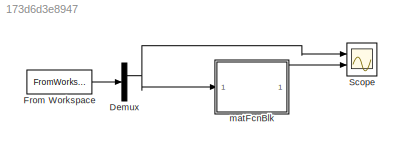
MODEL slx_173d6d3e8947
KIND model
CONFIG AbsTol = auto
CONFIG FixedStep = .001
CONFIG MaxStep = auto
CONFIG MinStep = auto
CONFIG RelTol = 1e-3
CONFIG SampleTimeConstraint = Unconstrained
CONFIG Solver = ode5
CONFIG SolverMode = Auto
CONFIG SolverName = ode5
CONFIG StartTime = 0.0
CONFIG StopTime = inf
BLOCK [Demux] Demux
  DisplayOption = bar
  Outputs = 2
  Ports = [1, 2]
BLOCK [FromWorkspace] From Workspace
  SampleTime = 0
  VariableName = traj
  ZeroCross = on
BLOCK [Scope] Scope
  NumInputPorts = 2
  Ports = [2]
  ScopeSpecificationString = Simulink.scopes.TimeScopeBlockCfg('CurrentConfiguration', extmgr.ConfigurationSet(extmgr.Configuration('Core','General UI',true),extmgr.Configuration('Core','Source UI',true),extmgr.Configuration('Sources','WiredSimulink',true),extmgr.Configuration('Visuals','Time Domain',true,'SerializedDisplays',{struct('MinYLimReal','-62544.94575','MaxYLimReal','562504.87182','YLabelReal','','MinYLimMag','   0....<+1506ch>
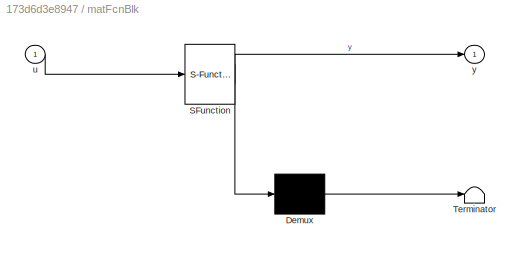
BLOCK [SubSystem] matFcnBlk
  ErrorFcn = Stateflow.Translate.translate
  PermitHierarchicalResolution = ExplicitOnly
  Ports = [1, 1]
  RequestExecContextInheritance = off
  SFBlockType = MATLAB Function
  TreatAsAtomicUnit = on
  Variant = off
BLOCK [Demux] matFcnBlk/ Demux 
  Outputs = 1
  Ports = [1, 1]
BLOCK [S-Function] matFcnBlk/ SFunction 
  EnableBusSupport = on
  FunctionName = sf_sfun
  Parameters = robot
  PortCounts = [1 2]
  Ports = [1, 2]
  SFunctionDeploymentMode = off
  Tag = Stateflow S-Function slxTest 2
BLOCK [Terminator] matFcnBlk/ Terminator 
BLOCK [Inport] matFcnBlk/u
  IconDisplay = Port number
BLOCK [Outport] matFcnBlk/y
  IconDisplay = Port number
NET Demux:1 -> Scope:1, matFcnBlk:1
LINE From Workspace:1 -> Demux:1
LINE matFcnBlk:1 -> Scope:2
note: NET lines group one-source signal fan-out (src -> all destinations, sorted); 1:1 wires keep LINE
CHART matFcnBlk states=1 transitions=1
  STATE_LABEL 'eML_blk_kernel()'
  STATE_LABEL 'SCRIPT:\nfunction y  = divide0p1(robot, u)\n%#codegen\n\ny = raw2joint_at40gw(robot,u);\n%y = divide0p1_alt(u);\n'
